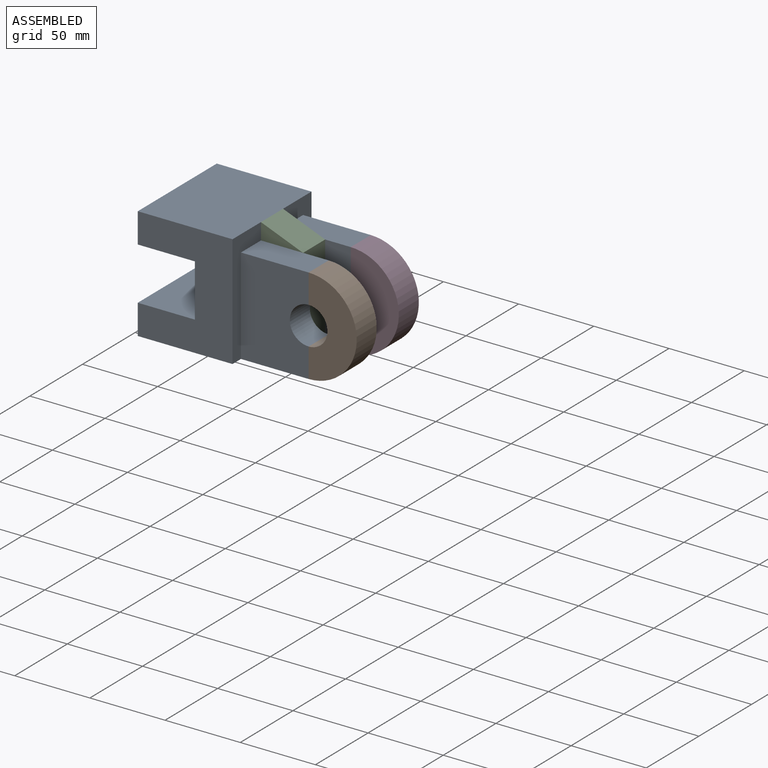
[diagram: assembled view]
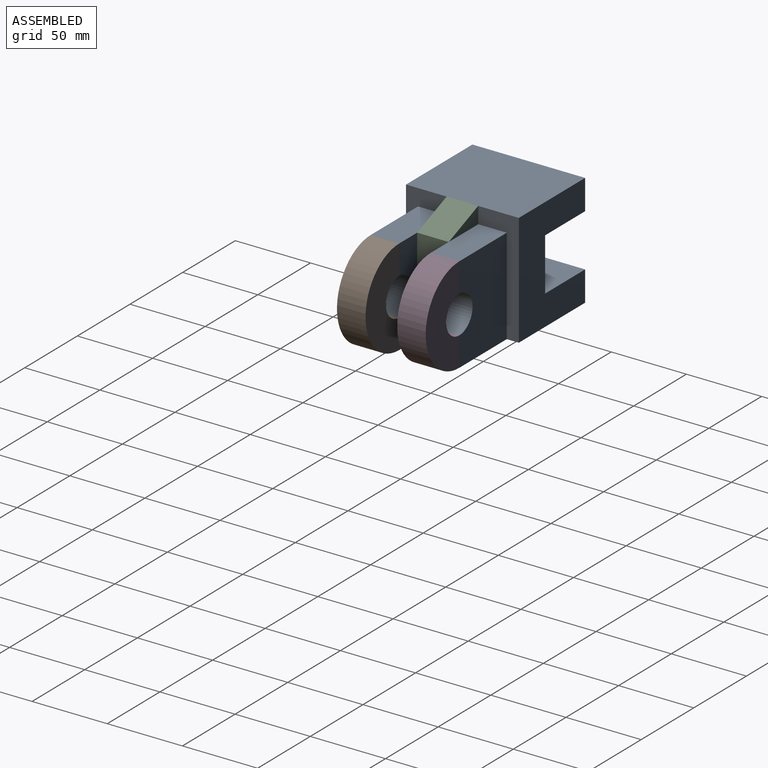
[diagram: assembled view, second angle]
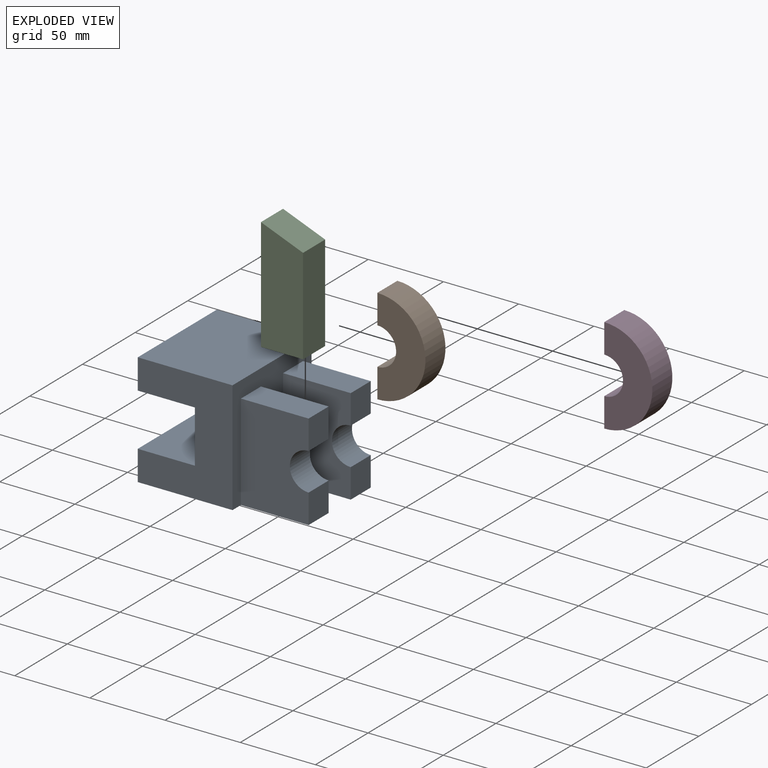
[diagram: exploded view]
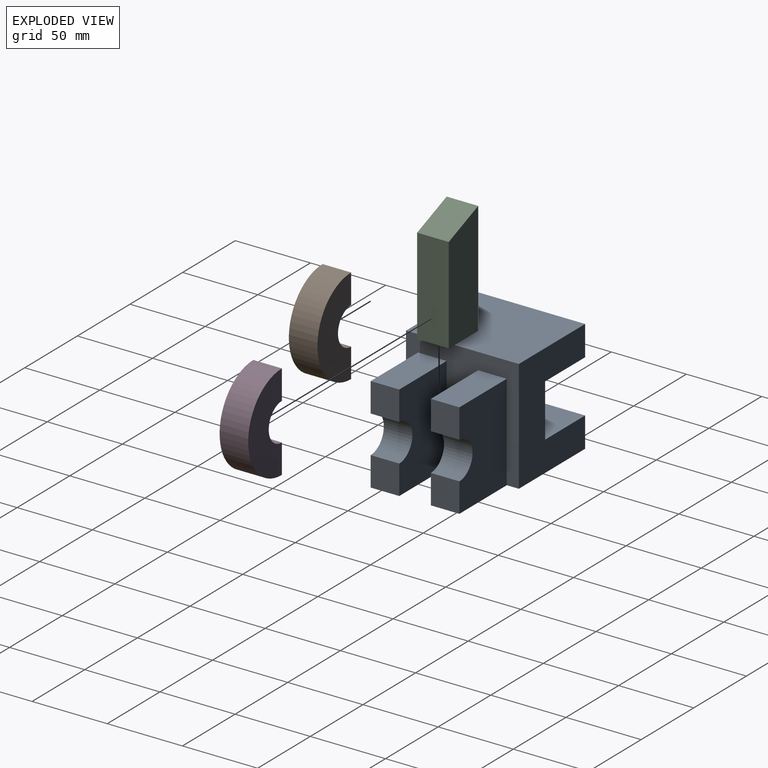
[diagram: exploded view, second angle]
ASSEMBLY  parts=4 mates=3
PART A: 22 faces, bbox 108x75x75 mm
  f0: plane 19.5x19mm, normal (1,0,0), area 370.5mm2, adj f4,f12,f13,f21
  f1: plane 19.5x19mm, normal (1,0,0), area 370.5mm2, adj f4,f16,f18,f20
  f2: plane 75x75mm, normal (1,0,0), area 3193mm2, adj f4,f5,f10,f11,f12,f13,f14,f16
  f3: plane 75x20mm, normal (-1,0,0), area 1500mm2, adj f4,f9,f10,f11
  f4: plane 108x75mm, normal (0,0,-1), area 6435mm2, adj f0,f1,f2,f3,f10,f11,f12,f13
  f5: plane 75x63mm, normal (0,0,1), area 4725mm2, adj f2,f6,f10,f11
  f6: plane 75x20mm, normal (-1,0,0), area 1500mm2, adj f5,f7,f10,f11
  f7: plane 75x38mm, normal (0,0,-1), area 2850mm2, adj f6,f8,f10,f11
  f8: plane 75x35mm, normal (-1,0,0), area 2625mm2, adj f7,f9,f10,f11
  f9: plane 75x38mm, normal (0,0,1), area 2850mm2, adj f3,f8,f10,f11
  f10: plane 75x63mm, normal (0,1,0), area 3395mm2, adj f2,f3,f4,f5,f6,f7,f8,f9
  f11: plane 75x63mm, normal (0,-1,0), area 3395mm2, adj f2,f3,f4,f5,f6,f7,f8,f9
  f12: plane 64x45mm, normal (0,-1,0), area 2634.6mm2, adj f0,f2,f4,f14,f15,f21
  f13: plane 64x45mm, normal (0,1,0), area 2634.6mm2, adj f0,f2,f4,f14,f15,f21
  f14: plane 45x19mm, normal (0,0,1), area 855mm2, adj f2,f12,f13,f15
  f15: plane 19.5x19mm, normal (1,0,0), area 370.5mm2, adj f12,f13,f14,f21
  f16: plane 64x45mm, normal (0,1,0), area 2634.6mm2, adj f1,f2,f4,f17,f19,f20
  f17: plane 45x19mm, normal (0,0,1), area 855mm2, adj f2,f16,f18,f19
  f18: plane 64x45mm, normal (0,-1,0), area 2634.6mm2, adj f1,f2,f4,f17,f19,f20
  f19: plane 19.5x19mm, normal (1,0,0), area 370.5mm2, adj f16,f17,f18,f20
  f20: cylinder r=12.5mm len=25mm, axis (0,-1,0), area 746.1mm2, adj f1,f16,f18,f19
  f21: cylinder r=12.5mm len=25mm, axis (0,-1,0), area 746.1mm2, adj f0,f12,f13,f15
PART B: 6 faces, bbox 32x19x64 mm
  f0: plane 19.5x19mm, normal (-1,0,0), area 370.5mm2, adj f2,f3,f4,f5
  f1: plane 19.5x19mm, normal (-1,0,0), area 370.5mm2, adj f2,f3,f4,f5
  f2: cylinder r=32mm len=64mm, axis (0,-1,0), area 1910.1mm2, adj f0,f1,f3,f4
  f3: plane 64x32mm, normal (0,1,0), area 1363.1mm2, adj f0,f1,f2,f5
  f4: plane 64x32mm, normal (0,-1,0), area 1363.1mm2, adj f0,f1,f2,f5
  f5: cylinder r=12.5mm len=25mm, axis (0,-1,0), area 746.1mm2, adj f0,f1,f3,f4
PART C: 6 faces, bbox 28x21x75 mm
  f0: plane 75x21mm, normal (-1,0,0), area 1575mm2, adj f1,f3,f4,f5
  f1: plane 28x21mm, normal (0,0,-1), area 588mm2, adj f0,f2,f4,f5
  f2: plane 64x21mm, normal (1,0,0), area 1344mm2, adj f1,f3,f4,f5
  f3: plane 28x21mm, normal (0.37,0,0.93), area 631.7mm2, adj f0,f2,f4,f5
  f4: plane 75x28mm, normal (0,1,0), area 1946mm2, adj f0,f1,f2,f3
  f5: plane 75x28mm, normal (0,-1,0), area 1946mm2, adj f0,f1,f2,f3
PART D: same geometry as B
PLACE A t=(15.04,38.26,-8.77)mm
PLACE B t=(15.04,38.26,-8.77)mm
PLACE C t=(78.04,65.26,-8.77)mm
PLACE D t=(15.04,78.26,-8.77)mm
MATE fastened D.f1 <-> A.f19  axis (-1,0,0) through (123.04,95.76,45.48)mm
MATE fastened C.f0 <-> A.f2  axis (-1,0,0) through (78.04,75.76,-8.77)mm
MATE fastened B.f1 <-> A.f15  axis (-1,0,0) through (123.04,55.76,45.48)mm
